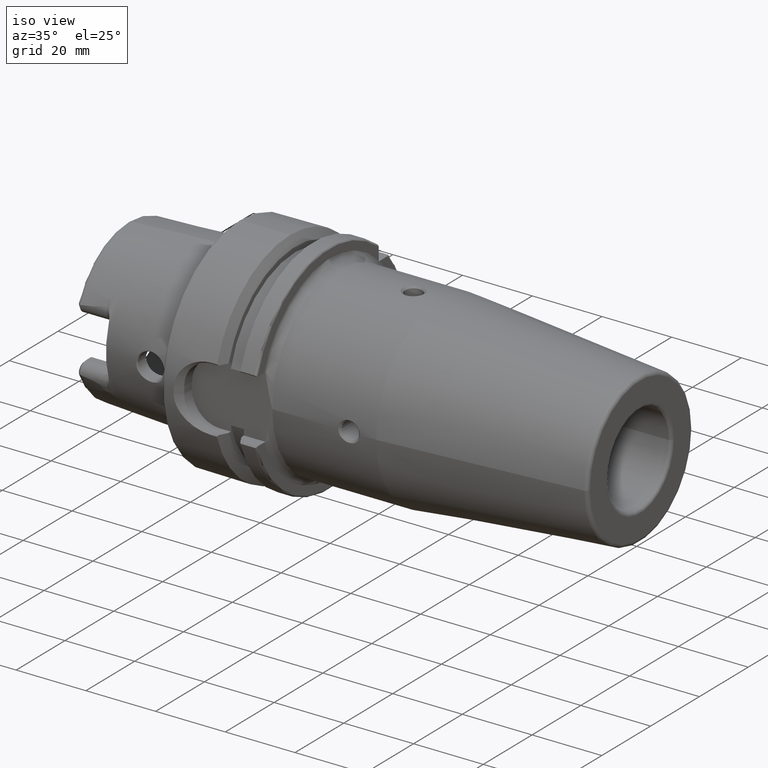
[diagram: clean part render]
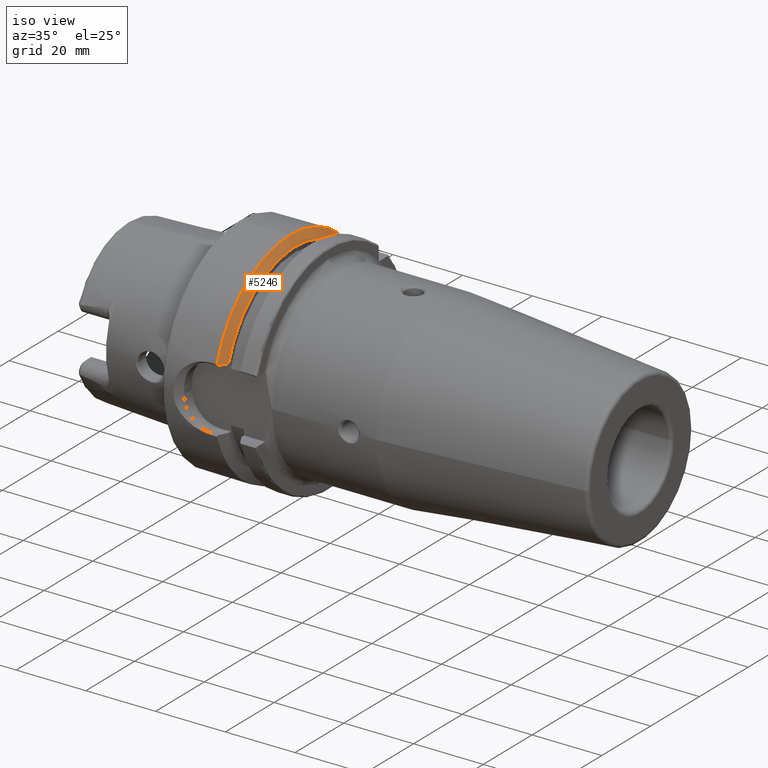
[diagram: same view with one face highlighted and labeled with its STEP entity id]
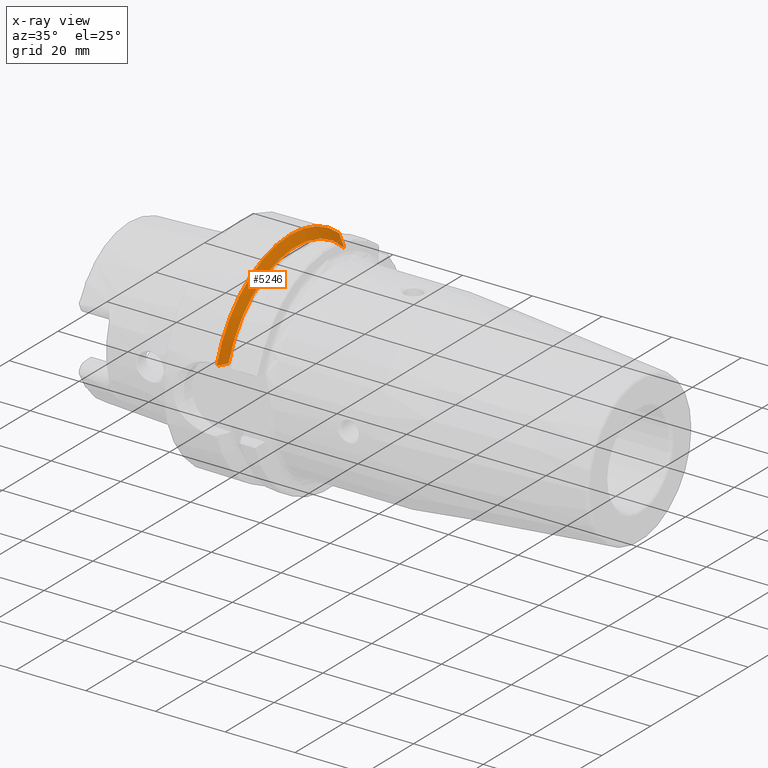
[diagram: x-ray of the same camera — body ghosted, the highlighted face saturated]
A machine part, iso view. The second image highlights one B-rep face of the part: STEP entity #5246.
The next image is the same camera in x-ray: the body ghosted, the highlighted face saturated — about 2% of this face is hidden behind the body in this view.
In plain terms, the highlighted conical surface has half-angle 60 deg.
Its self-contained STEP definition (entity closure, byte-faithful):
#1449=CARTESIAN_POINT('',(5.756890119908E-1,0.E0,0.E0));
#1450=DIRECTION('',(1.E0,0.E0,0.E0));
#1451=DIRECTION('',(0.E0,6.349206349206E-1,7.725773665802E-1));
#1452=AXIS2_PLACEMENT_3D('',#1449,#1450,#1451);
#1581=CARTESIAN_POINT('',(5.756890119908E-1,0.E0,0.E0));
#1582=DIRECTION('',(1.E0,0.E0,0.E0));
#1583=DIRECTION('',(0.E0,0.E0,1.E0));
#1584=AXIS2_PLACEMENT_3D('',#1581,#1582,#1583);
#1708=CARTESIAN_POINT('',(5.756890119908E-1,-1.183982137824E0,
3.690215079028E-1));
#1709=CARTESIAN_POINT('',(5.774713953626E-1,-1.181516858694E0,
3.665562287724E-1));
#1710=CARTESIAN_POINT('',(5.810203401928E-1,-1.176603114318E0,
3.616424843967E-1));
#1711=CARTESIAN_POINT('',(5.845376303483E-1,-1.171722993783E0,
3.567623638618E-1));
#1712=CARTESIAN_POINT('',(5.862883592709E-1,-1.169291338583E0,
3.543307086614E-1));
#1714=CARTESIAN_POINT('',(6.348425196850E-1,7.874015748031E-1,
8.211951172607E-1));
#1715=CARTESIAN_POINT('',(6.288461163275E-1,7.874015748031E-1,
8.355841991322E-1));
#1716=CARTESIAN_POINT('',(6.164726780008E-1,7.874015748031E-1,
8.649129530200E-1));
#1717=CARTESIAN_POINT('',(5.967767373293E-1,7.874015748031E-1,
9.105150512447E-1));
#1718=CARTESIAN_POINT('',(5.828498933032E-1,7.874015748031E-1,
9.420635318460E-1));
#1719=CARTESIAN_POINT('',(5.756890119908E-1,7.874015748031E-1,
9.581176002865E-1));
#1721=CARTESIAN_POINT('',(6.348425196850E-1,0.E0,0.E0));
#1722=DIRECTION('',(1.E0,0.E0,0.E0));
#1723=DIRECTION('',(0.E0,6.920991104059E-1,7.218024808598E-1));
#1724=AXIS2_PLACEMENT_3D('',#1721,#1722,#1723);
#1726=CARTESIAN_POINT('',(6.348425196850E-1,-1.081116279368E0,
3.543307086614E-1));
#1727=CARTESIAN_POINT('',(6.296001058617E-1,-1.090671649109E0,
3.543307086614E-1));
#1728=CARTESIAN_POINT('',(6.190134165522E-1,-1.109943475660E0,
3.543307086614E-1));
#1729=CARTESIAN_POINT('',(6.028299200857E-1,-1.139332183876E0,
3.543307086614E-1));
#1730=CARTESIAN_POINT('',(5.918361162318E-1,-1.159250845764E0,
3.543307086614E-1));
#1731=CARTESIAN_POINT('',(5.862883592709E-1,-1.169291338583E0,
3.543307086614E-1));
#2888=CARTESIAN_POINT('',(6.348425196850E-1,-1.081116279368E0,
3.543307086614E-1));
#2889=VERTEX_POINT('',#2888);
#2911=CARTESIAN_POINT('',(5.756890119908E-1,7.874015748031E-1,
9.581176002865E-1));
#2913=VERTEX_POINT('',#2911);
#2918=VERTEX_POINT('',#1714);
#2930=CARTESIAN_POINT('',(5.756890119908E-1,0.E0,1.240157480315E0));
#2931=VERTEX_POINT('',#2930);
#3092=CARTESIAN_POINT('',(5.756890119908E-1,-1.183982137824E0,
3.690215079028E-1));
#3093=VERTEX_POINT('',#3092);
#3095=VERTEX_POINT('',#1712);
#5230=CARTESIAN_POINT('',(6.052657658379E-1,0.E0,0.E0));
#5231=DIRECTION('',(-1.E0,0.E0,0.E0));
#5232=DIRECTION('',(0.E0,0.E0,-1.E0));
#5233=AXIS2_PLACEMENT_3D('',#5230,#5231,#5232);
#5234=CONICAL_SURFACE('',#5233,1.188929041339E0,5.999999931725E1);
#5235=ORIENTED_EDGE('',*,*,#5207,.F.);
#5236=ORIENTED_EDGE('',*,*,#5093,.F.);
#5237=ORIENTED_EDGE('',*,*,#4877,.F.);
#5239=ORIENTED_EDGE('',*,*,#5238,.F.);
#5241=ORIENTED_EDGE('',*,*,#5240,.T.);
#5243=ORIENTED_EDGE('',*,*,#5242,.T.);
#5244=EDGE_LOOP('',(#5235,#5236,#5237,#5239,#5241,#5243));
#5245=FACE_OUTER_BOUND('',#5244,.F.);
#5246=ADVANCED_FACE('',(#5245),#5234,.T.);
#1453=CIRCLE('',#1452,1.240157480315E0);
#1585=CIRCLE('',#1584,1.240157480315E0);
#1713=B_SPLINE_CURVE_WITH_KNOTS('',3,(#1708,#1709,#1710,#1711,#1712),
.UNSPECIFIED.,.F.,.F.,(4,1,4),(0.E0,5.E-1,1.E0),.UNSPECIFIED.);
#1720=B_SPLINE_CURVE_WITH_KNOTS('',3,(#1714,#1715,#1716,#1717,#1718,#1719),
.UNSPECIFIED.,.F.,.F.,(4,1,1,4),(0.E0,3.333333333333E-1,6.666666666667E-1,1.E0),
.UNSPECIFIED.);
#1725=CIRCLE('',#1724,1.137700602362E0);
#1732=B_SPLINE_CURVE_WITH_KNOTS('',3,(#1726,#1727,#1728,#1729,#1730,#1731),
.UNSPECIFIED.,.F.,.F.,(4,1,1,4),(0.E0,3.333333333333E-1,6.666666666667E-1,1.E0),
.UNSPECIFIED.);
#4877=EDGE_CURVE('',#2913,#2931,#1453,.T.);
#5093=EDGE_CURVE('',#2931,#3093,#1585,.T.);
#5207=EDGE_CURVE('',#3093,#3095,#1713,.T.);
#5238=EDGE_CURVE('',#2918,#2913,#1720,.T.);
#5240=EDGE_CURVE('',#2918,#2889,#1725,.T.);
#5242=EDGE_CURVE('',#2889,#3095,#1732,.T.);